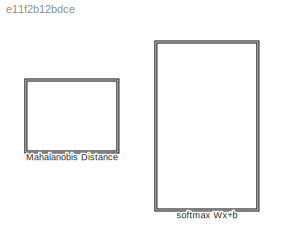
MODEL slx_e11f2b12bdce
KIND library
CONFIG AbsTol = auto
CONFIG EnableMultiTasking = off
CONFIG FixedStep = auto
CONFIG MaxStep = auto
CONFIG MinStep = auto
CONFIG RelTol = 1e-3
CONFIG SampleTimeConstraint = Unconstrained
CONFIG Solver = VariableStepAuto
CONFIG SolverName = VariableStepAuto
CONFIG StartTime = 0.0
CONFIG StopTime = 10.0
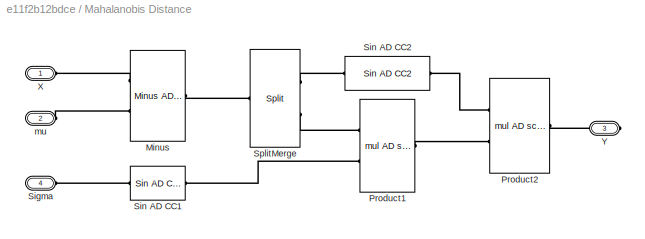
BLOCK [SubSystem]  Mahalanobis Distance 
  Ports = [0, 0, 0, 0, 0, 3, 1]
  RequestExecContextInheritance = off
  Variant = off
BLOCK [Reference]  Mahalanobis Distance /Minus  REF=autodiff/Minus AD CC1  (lib defined in slx_73a817ef6e8b)
  Ports = [0, 0, 0, 0, 0, 2, 1]
  SourceBlock = autodiff/Minus AD CC1
  SourceProductName = AutoDiff
  SourceType = SubSystem
BLOCK [Reference]  Mahalanobis Distance /Product1  REF=autodiff/mul AD scalar CC  (lib defined in slx_73a817ef6e8b)
  Ports = [0, 0, 0, 0, 0, 2, 1]
  SourceBlock = autodiff/mul AD scalar CC
  SourceProductName = AutoDiff
  SourceType = SubSystem
BLOCK [Reference]  Mahalanobis Distance /Product2  REF=autodiff/mul AD scalar CC  (lib defined in slx_73a817ef6e8b)
  Ports = [0, 0, 0, 0, 0, 2, 1]
  SourceBlock = autodiff/mul AD scalar CC
  SourceProductName = AutoDiff
  SourceType = SubSystem
BLOCK [PMIOPort]  Mahalanobis Distance /Sigma
  Port = 4
  Side = Left
BLOCK [Reference]  Mahalanobis Distance /Sin AD CC1  REF=autodiff/Sin AD CC1  (lib defined in slx_73a817ef6e8b)
  Ports = [0, 0, 0, 0, 0, 1, 1]
  SourceBlock = autodiff/Sin AD CC1
  SourceProductName = AutoDiff
BLOCK [Reference]  Mahalanobis Distance /Sin AD CC2  REF=autodiff/Sin AD CC2  (lib defined in slx_73a817ef6e8b)
  Ports = [0, 0, 0, 0, 0, 1, 1]
  SourceBlock = autodiff/Sin AD CC2
  SourceProductName = AutoDiff
BLOCK [Reference]  Mahalanobis Distance /SplitMerge  REF=autodiff/Split  (lib defined in slx_73a817ef6e8b)
  Ports = [0, 0, 0, 0, 0, 1, 2]
  SourceBlock = autodiff/Split
  SourceProductName = AutoDiff
BLOCK [PMIOPort]  Mahalanobis Distance /X
  Port = 1
  Side = Left
BLOCK [PMIOPort]  Mahalanobis Distance /Y
  Port = 3
  Side = Right
BLOCK [PMIOPort]  Mahalanobis Distance /mu
  Port = 2
  Side = Left
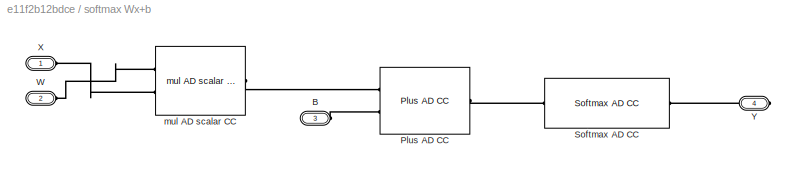
BLOCK [SubSystem] softmax Wx+b
  Ports = [0, 0, 0, 0, 0, 3, 1]
  RequestExecContextInheritance = off
  Variant = off
BLOCK [PMIOPort] softmax Wx+b/B
  Port = 3
  Side = Left
BLOCK [Reference] softmax Wx+b/Plus AD CC  REF=autodiff/Plus AD CC  (lib defined in slx_73a817ef6e8b)
  Ports = [0, 0, 0, 0, 0, 2, 1]
  SourceBlock = autodiff/Plus AD CC
  SourceProductName = AutoDiff
  SourceType = SubSystem
BLOCK [Reference] softmax Wx+b/Softmax AD CC  REF=autodiff/Softmax AD CC  (lib defined in slx_73a817ef6e8b)
  Ports = [0, 0, 0, 0, 0, 1, 1]
  SourceBlock = autodiff/Softmax AD CC
  SourceProductName = AutoDiff
BLOCK [PMIOPort] softmax Wx+b/W
  Port = 2
  Side = Left
BLOCK [PMIOPort] softmax Wx+b/X
  Port = 1
  Side = Left
BLOCK [PMIOPort] softmax Wx+b/Y
  Port = 4
  Side = Right
BLOCK [Reference] softmax Wx+b/mul AD scalar CC  REF=autodiff/mul AD scalar CC  (lib defined in slx_73a817ef6e8b)
  Ports = [0, 0, 0, 0, 0, 2, 1]
  SourceBlock = autodiff/mul AD scalar CC
  SourceProductName = AutoDiff
  SourceType = SubSystem
PLINE  Mahalanobis Distance /Minus:LConn1 --  Mahalanobis Distance /X:RConn1
PLINE  Mahalanobis Distance /Minus:LConn2 --  Mahalanobis Distance /mu:RConn1
PLINE  Mahalanobis Distance /Minus:RConn1 --  Mahalanobis Distance /SplitMerge:LConn1
PLINE  Mahalanobis Distance /Product1:LConn1 --  Mahalanobis Distance /SplitMerge:RConn2
PLINE  Mahalanobis Distance /Product1:LConn2 --  Mahalanobis Distance /Sin AD CC1:RConn1
PLINE  Mahalanobis Distance /Product1:RConn1 --  Mahalanobis Distance /Product2:LConn2
PLINE  Mahalanobis Distance /Product2:LConn1 --  Mahalanobis Distance /Sin AD CC2:RConn1
PLINE  Mahalanobis Distance /Product2:RConn1 --  Mahalanobis Distance /Y:RConn1
PLINE  Mahalanobis Distance /Sigma:RConn1 --  Mahalanobis Distance /Sin AD CC1:LConn1
PLINE  Mahalanobis Distance /Sin AD CC2:LConn1 --  Mahalanobis Distance /SplitMerge:RConn1
PLINE softmax Wx+b/B:RConn1 -- softmax Wx+b/Plus AD CC:LConn2
PLINE softmax Wx+b/Plus AD CC:LConn1 -- softmax Wx+b/mul AD scalar CC:RConn1
PLINE softmax Wx+b/Plus AD CC:RConn1 -- softmax Wx+b/Softmax AD CC:LConn1
PLINE softmax Wx+b/Softmax AD CC:RConn1 -- softmax Wx+b/Y:RConn1
PLINE softmax Wx+b/W:RConn1 -- softmax Wx+b/mul AD scalar CC:LConn1
PLINE softmax Wx+b/X:RConn1 -- softmax Wx+b/mul AD scalar CC:LConn2
